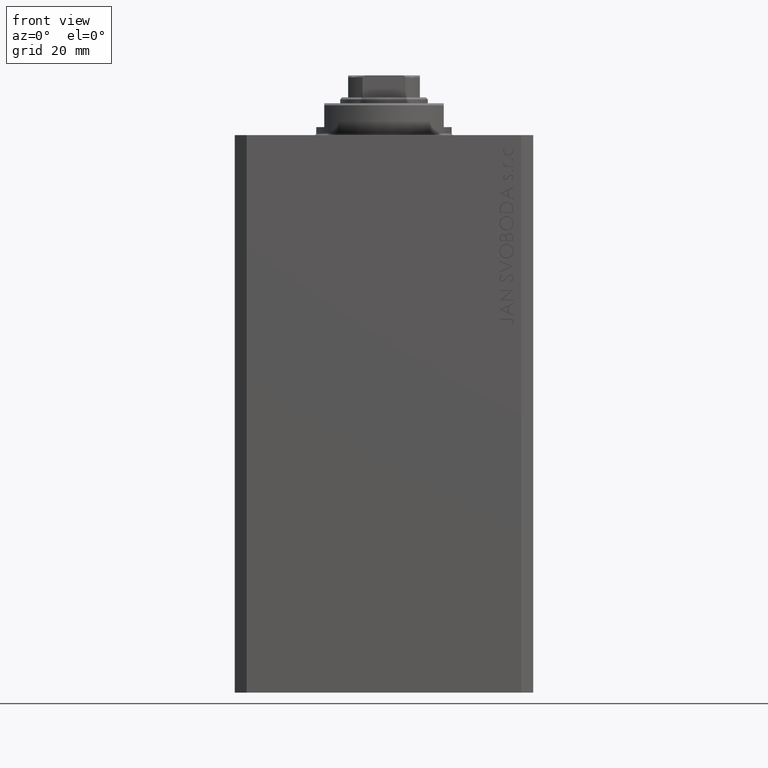
[diagram: clean part render]
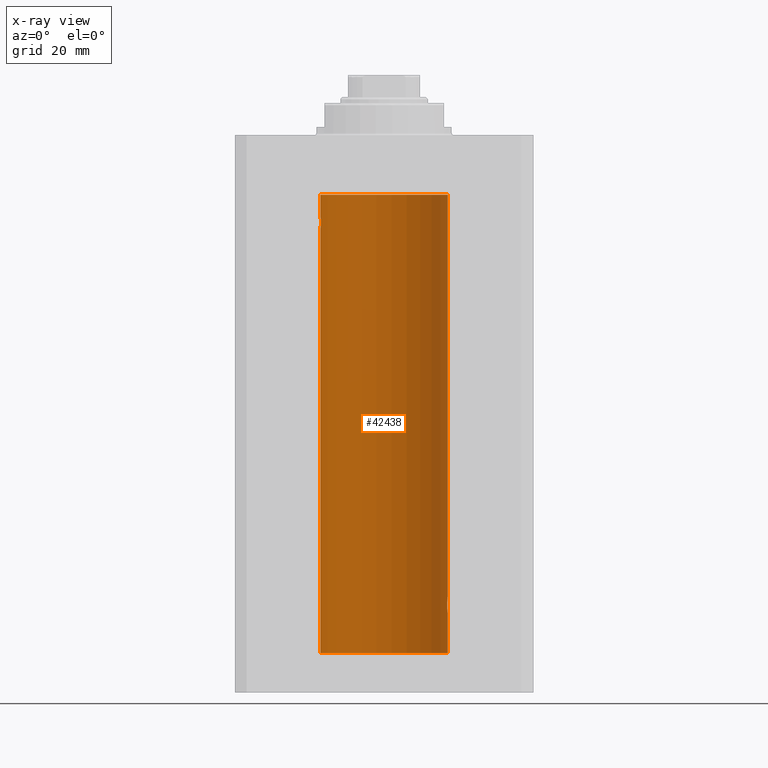
[diagram: x-ray — body ghosted, one internal face saturated and labeled with its STEP entity id]
A machine part, front view, then the same camera in x-ray: the body is ghosted and one INTERNAL B-rep face — a face not visible from any outside direction — is saturated and labeled: STEP entity #42438.
In plain terms, the highlighted cylindrical surface (partial cylindrical patch) has radius 16 mm, axis along (0, 0, 1).
Its self-contained STEP definition (entity closure, byte-faithful):
#136 = VERTEX_POINT ( 'NONE', #26934 ) ;
#188 = VERTEX_POINT ( 'NONE', #28999 ) ;
#243 = CARTESIAN_POINT ( 'NONE',  ( 15.87450786638750699, 2.000000000000297096, -118.0000000000000284 ) ) ;
#808 = ORIENTED_EDGE ( 'NONE', *, *, #11178, .F. ) ;
#952 = CARTESIAN_POINT ( 'NONE',  ( 15.87450786638751055, 2.000000000000297984, -117.8694386949729704 ) ) ;
#1245 = CARTESIAN_POINT ( 'NONE',  ( -16.00000000000000000, 8.139613661842072923E-16, -20.00000000000000000 ) ) ;
#1250 = VECTOR ( 'NONE', #12155, 1000.000000000000000 ) ;
#1386 = EDGE_CURVE ( 'NONE', #18527, #188, #23870, .T. ) ;
#1464 = CARTESIAN_POINT ( 'NONE',  ( -16.00000000000000000, 8.139613661842072923E-16, -20.00000000000000000 ) ) ;
#1516 = EDGE_CURVE ( 'NONE', #44726, #12711, #12444, .T. ) ;
#1716 = AXIS2_PLACEMENT_3D ( 'NONE', #39541, #35258, #17587 ) ;
#1756 = VECTOR ( 'NONE', #43763, 1000.000000000000000 ) ;
#2033 = CARTESIAN_POINT ( 'NONE',  ( 15.99211620657850474, 0.5182628822511399225, -119.9360834489417442 ) ) ;
#2422 = CARTESIAN_POINT ( 'NONE',  ( 16.00000000000000000, 0.000000000000000000, -130.0999999999999943 ) ) ;
#2984 = CARTESIAN_POINT ( 'NONE',  ( 15.92096875784782739, 1.599058044721133331, -119.2292259384397113 ) ) ;
#4017 = ORIENTED_EDGE ( 'NONE', *, *, #30730, .F. ) ;
#5742 = CARTESIAN_POINT ( 'NONE',  ( -15.90580292899658055, 1.735145127817749655, -23.00311247035039486 ) ) ;
#5874 = DIRECTION ( 'NONE',  ( 1.000000000000000000, 0.000000000000000000, 0.000000000000000000 ) ) ;
#6561 = CARTESIAN_POINT ( 'NONE',  ( 15.97582125337101999, 0.8876008124445644576, -119.7970409061775143 ) ) ;
#8129 = CARTESIAN_POINT ( 'NONE',  ( 16.00000000000000000, -2.738688404655786685E-23, -116.0000000000000142 ) ) ;
#8508 = B_SPLINE_CURVE_WITH_KNOTS ( 'NONE', 3,
 ( #13724, #39261, #20656, #2033, #20177, #6561, #9184, #28289, #16836, #2984, #28051, #24247, #39028, #10152 ),
 .UNSPECIFIED., .F., .F.,
 ( 4, 2, 2, 2, 2, 2, 4 ),
 ( 3.424160547694500162E-18, 0.0003912813346923356916, 0.0007825626693846680221, 0.001173844004077000082, 0.001565125338769331924, 0.002347688008154024883, 0.003130250677538718058 ),
 .UNSPECIFIED. ) ;
#8768 = VERTEX_POINT ( 'NONE', #21465 ) ;
#8783 = ORIENTED_EDGE ( 'NONE', *, *, #18787, .T. ) ;
#8852 = CARTESIAN_POINT ( 'NONE',  ( -15.89876304682112362, 1.797743958659264507, -22.88617757057269841 ) ) ;
#8974 = CARTESIAN_POINT ( 'NONE',  ( 0.000000000000000000, 0.000000000000000000, -130.0999999999999943 ) ) ;
#9083 = CARTESIAN_POINT ( 'NONE',  ( -15.99206840425678955, 0.5198215460038748681, -23.93569052926128649 ) ) ;
#9184 = CARTESIAN_POINT ( 'NONE',  ( 15.96893716441426214, 1.002454028984434808, -119.7355604244121707 ) ) ;
#9213 = VERTEX_POINT ( 'NONE', #41643 ) ;
#9328 = CARTESIAN_POINT ( 'NONE',  ( -15.88247600692092831, 1.935876924222084350, -22.51913097710111700 ) ) ;
#9565 = CARTESIAN_POINT ( 'NONE',  ( -15.99836091803360283, 0.2623312429553310565, -20.01299475991587329 ) ) ;
#9845 = ORIENTED_EDGE ( 'NONE', *, *, #1386, .T. ) ;
#10152 = CARTESIAN_POINT ( 'NONE',  ( 15.87450786638750699, 2.000000000000297096, -118.0000000000000284 ) ) ;
#10320 = ORIENTED_EDGE ( 'NONE', *, *, #26657, .T. ) ;
#11178 = EDGE_CURVE ( 'NONE', #18527, #9213, #36302, .T. ) ;
#11222 = CARTESIAN_POINT ( 'NONE',  ( 15.92095407913750726, 1.590131347295332009, -116.7799846904292167 ) ) ;
#11459 = CARTESIAN_POINT ( 'NONE',  ( 16.00000000000000000, 0.1305637488590863926, -116.0000000000000000 ) ) ;
#11478 = CARTESIAN_POINT ( 'NONE',  ( -16.00000000000000000, 1.959434878635765131E-15, -130.0999999999999943 ) ) ;
#11696 = CARTESIAN_POINT ( 'NONE',  ( 15.99834953062734222, 0.2631943783489354982, -116.0130845296388316 ) ) ;
#11922 = CARTESIAN_POINT ( 'NONE',  ( 15.95379436193629985, 1.219925354616377966, -116.4098000984431849 ) ) ;
#12155 = DIRECTION ( 'NONE',  ( -0.000000000000000000, -0.000000000000000000, 1.000000000000000000 ) ) ;
#12444 = B_SPLINE_CURVE_WITH_KNOTS ( 'NONE', 3,
 ( #243, #952, #22907, #44156, #30308, #15046, #14806, #11222, #32952, #44394, #11922, #33657, #15280, #15513, #26491, #11696, #11459, #18388 ),
 .UNSPECIFIED., .F., .F.,
 ( 4, 2, 2, 2, 2, 2, 2, 2, 4 ),
 ( 0.003130250677538718058, 0.003521348247420690372, 0.003912445817302662686, 0.004303543387184635000, 0.004694640957066607313, 0.005085738526948579627, 0.005476836096830552808, 0.005867933666712525122, 0.006259031236594497435 ),
 .UNSPECIFIED. ) ;
#12711 = VERTEX_POINT ( 'NONE', #8129 ) ;
#12848 = VERTEX_POINT ( 'NONE', #42696 ) ;
#12906 = CARTESIAN_POINT ( 'NONE',  ( -15.92908549642226745, 1.507649250492136606, -23.32075824828932653 ) ) ;
#13003 = VERTEX_POINT ( 'NONE', #39594 ) ;
#13383 = CARTESIAN_POINT ( 'NONE',  ( -15.94553003295877680, 1.322357532253827461, -20.49389287531754889 ) ) ;
#13724 = CARTESIAN_POINT ( 'NONE',  ( 16.00000000000000000, 3.524002214059393877E-15, -120.0000000000000284 ) ) ;
#14209 = DIRECTION ( 'NONE',  ( 1.000000000000000000, 0.000000000000000000, 0.000000000000000000 ) ) ;
#14806 = CARTESIAN_POINT ( 'NONE',  ( 15.90582997788426312, 1.734897462761020082, -116.9964633285505187 ) ) ;
#15046 = CARTESIAN_POINT ( 'NONE',  ( 15.89878974374255449, 1.797508500259969777, -117.1133488878856781 ) ) ;
#15280 = CARTESIAN_POINT ( 'NONE',  ( 15.97588373855009536, 0.8864683965309503311, -116.2024065562767561 ) ) ;
#15513 = CARTESIAN_POINT ( 'NONE',  ( 15.98747899434752817, 0.6443623600228916004, -116.1021155051082729 ) ) ;
#16024 = CARTESIAN_POINT ( 'NONE',  ( -15.92092783521423272, 1.590393755196006786, -23.21967657442277755 ) ) ;
#16498 = CARTESIAN_POINT ( 'NONE',  ( -15.88709929148890510, 1.898058445420892637, -22.64386968033013403 ) ) ;
#16747 = LINE ( 'NONE', #2422, #46205 ) ;
#16836 = CARTESIAN_POINT ( 'NONE',  ( 15.94550883254178331, 1.322613426523511881, -119.5058849502901666 ) ) ;
#17265 = AXIS2_PLACEMENT_3D ( 'NONE', #36165, #46912, #14209 ) ;
#17587 = DIRECTION ( 'NONE',  ( 1.000000000000000000, 0.000000000000000000, 0.000000000000000000 ) ) ;
#18388 = CARTESIAN_POINT ( 'NONE',  ( 16.00000000000000000, -2.738688404655786685E-23, -116.0000000000000142 ) ) ;
#18527 = VERTEX_POINT ( 'NONE', #1245 ) ;
#18693 = EDGE_CURVE ( 'NONE', #12711, #8768, #16747, .T. ) ;
#18787 = EDGE_CURVE ( 'NONE', #13003, #12848, #41279, .T. ) ;
#20072 = CARTESIAN_POINT ( 'NONE',  ( -15.87450182760079542, 2.000047931387149092, -22.12985308350499380 ) ) ;
#20177 = CARTESIAN_POINT ( 'NONE',  ( 15.98743782203464825, 0.6453927552190293904, -119.8975403585268396 ) ) ;
#20314 = CARTESIAN_POINT ( 'NONE',  ( -16.00000000000000000, 1.959434851239607631E-15, -23.99999999999999645 ) ) ;
#20656 = CARTESIAN_POINT ( 'NONE',  ( 15.99836014839681830, 0.2623923436743452187, -119.9869991933481828 ) ) ;
#20792 = CARTESIAN_POINT ( 'NONE',  ( -15.98744362947834929, 0.6452446332038160870, -20.10241129944407490 ) ) ;
#20808 = CIRCLE ( 'NONE', #1716, 16.00000000000000000 ) ;
#21465 = CARTESIAN_POINT ( 'NONE',  ( 16.00000000000000000, 0.000000000000000000, -15.00000000000000000 ) ) ;
#21725 = ORIENTED_EDGE ( 'NONE', *, *, #18693, .T. ) ;
#22907 = CARTESIAN_POINT ( 'NONE',  ( 15.87617168140110380, 1.986916736633999037, -117.7368093443493962 ) ) ;
#23147 = CARTESIAN_POINT ( 'NONE',  ( 16.00000000000000000, 0.000000000000000000, -130.0999999999999943 ) ) ;
#23658 = CARTESIAN_POINT ( 'NONE',  ( -15.99834873924246104, 0.2632563459770838055, -23.98690924832126115 ) ) ;
#23789 = DIRECTION ( 'NONE',  ( -0.000000000000000000, -0.000000000000000000, 1.000000000000000000 ) ) ;
#23870 = B_SPLINE_CURVE_WITH_KNOTS ( 'NONE', 3,
 ( #1464, #24141, #9565, #38692, #20792, #45376, #27004, #45850, #13383, #41554, #30592, #41787, #27711, #20072, #34636, #9328, #16498, #8852, #5742, #16024, #12906, #42499, #27469, #45143, #42264, #42027, #9083, #23658, #31062, #20314 ),
 .UNSPECIFIED., .F., .F.,
 ( 4, 2, 2, 2, 2, 2, 2, 2, 2, 2, 2, 2, 2, 2, 4 ),
 ( 7.909002969168862706E-19, 0.0003911894522871180884, 0.0007823789045742353095, 0.001173568356861352802, 0.001564757809148469968, 0.002347136713722698664, 0.003129515618296926493, 0.003520705070584046262, 0.003911894522871165597, 0.004303083975158284932, 0.004694273427445404268, 0.005085462879732523603, 0.005476652332019642938, 0.005867841784306762273, 0.006259031236593881609 ),
 .UNSPECIFIED. ) ;
#24141 = CARTESIAN_POINT ( 'NONE',  ( -15.99999999999999645, 0.1322838750249263340, -20.00000000000000000 ) ) ;
#24247 = CARTESIAN_POINT ( 'NONE',  ( 15.88135773388169092, 1.947448446433282854, -118.5247245543324794 ) ) ;
#26491 = CARTESIAN_POINT ( 'NONE',  ( 15.99207203775707065, 0.5197027266689088210, -116.0642796061806337 ) ) ;
#26657 = EDGE_CURVE ( 'NONE', #12848, #44726, #8508, .T. ) ;
#26896 = CARTESIAN_POINT ( 'NONE',  ( 15.87450786638750699, 2.000000000000297096, -118.0000000000000284 ) ) ;
#26934 = CARTESIAN_POINT ( 'NONE',  ( -16.00000000000000000, 1.959434878635765131E-15, -130.0999999999999943 ) ) ;
#27004 = CARTESIAN_POINT ( 'NONE',  ( -15.96895041604535770, 1.002241074716284874, -20.26431901501738153 ) ) ;
#27469 = CARTESIAN_POINT ( 'NONE',  ( -15.95377581882983442, 1.220169175415122931, -23.59001528100121803 ) ) ;
#27711 = CARTESIAN_POINT ( 'NONE',  ( -15.87451999516785506, 1.999903730784163169, -21.73808537237744432 ) ) ;
#28051 = CARTESIAN_POINT ( 'NONE',  ( 15.90454527605181667, 1.748004143318092174, -119.0061673938155309 ) ) ;
#28289 = CARTESIAN_POINT ( 'NONE',  ( 15.95380611548778660, 1.219810915946573759, -119.5903287070132706 ) ) ;
#28734 = CARTESIAN_POINT ( 'NONE',  ( -16.00000000000000000, 1.959434878635765131E-15, -130.0999999999999943 ) ) ;
#28999 = CARTESIAN_POINT ( 'NONE',  ( -16.00000000000000000, 1.959434851239607631E-15, -23.99999999999999645 ) ) ;
#30117 = ORIENTED_EDGE ( 'NONE', *, *, #1516, .T. ) ;
#30308 = CARTESIAN_POINT ( 'NONE',  ( 15.88712192135845491, 1.897869642555071179, -117.3555794672821264 ) ) ;
#30592 = CARTESIAN_POINT ( 'NONE',  ( -15.90457341008072412, 1.747750603376305278, -20.99340818440418488 ) ) ;
#30721 = CYLINDRICAL_SURFACE ( 'NONE', #36259, 16.00000000000000000 ) ;
#30730 = EDGE_CURVE ( 'NONE', #13003, #136, #20808, .T. ) ;
#31062 = CARTESIAN_POINT ( 'NONE',  ( -16.00000000000000000, 0.1305944228192325030, -23.99999999999999645 ) ) ;
#31725 = EDGE_LOOP ( 'NONE', ( #46416, #4017, #8783, #10320, #30117, #21725, #42451, #808, #9845 ) ) ;
#32006 = EDGE_CURVE ( 'NONE', #136, #188, #35898, .T. ) ;
#32834 = VECTOR ( 'NONE', #33202, 1000.000000000000000 ) ;
#32952 = CARTESIAN_POINT ( 'NONE',  ( 15.92911104305801828, 1.507378839264603476, -116.6789366429541701 ) ) ;
#33202 = DIRECTION ( 'NONE',  ( -0.000000000000000000, -0.000000000000000000, 1.000000000000000000 ) ) ;
#33657 = CARTESIAN_POINT ( 'NONE',  ( 15.96887171920781689, 1.003448269354837441, -116.2650518254207412 ) ) ;
#34291 = FACE_OUTER_BOUND ( 'NONE', #31725, .T. ) ;
#34415 = DIRECTION ( 'NONE',  ( -0.000000000000000000, -0.000000000000000000, 1.000000000000000000 ) ) ;
#34636 = CARTESIAN_POINT ( 'NONE',  ( -15.87616016863256618, 1.987008272775798723, -22.26251583007899626 ) ) ;
#35258 = DIRECTION ( 'NONE',  ( 0.000000000000000000, 0.000000000000000000, 1.000000000000000000 ) ) ;
#35898 = LINE ( 'NONE', #28734, #1756 ) ;
#36165 = CARTESIAN_POINT ( 'NONE',  ( 0.000000000000000000, 0.000000000000000000, -15.00000000000000000 ) ) ;
#36259 = AXIS2_PLACEMENT_3D ( 'NONE', #8974, #23789, #5874 ) ;
#36302 = LINE ( 'NONE', #11478, #32834 ) ;
#38692 = CARTESIAN_POINT ( 'NONE',  ( -15.99211983514074298, 0.5181437283162074747, -20.06388673317935911 ) ) ;
#39028 = CARTESIAN_POINT ( 'NONE',  ( 15.87450786638751410, 2.000000000000297096, -118.2612453035981872 ) ) ;
#39261 = CARTESIAN_POINT ( 'NONE',  ( 15.99999999999999645, 0.1323149458028788361, -120.0000000000000426 ) ) ;
#39541 = CARTESIAN_POINT ( 'NONE',  ( 0.000000000000000000, 0.000000000000000000, -130.0999999999999943 ) ) ;
#39594 = CARTESIAN_POINT ( 'NONE',  ( 16.00000000000000000, 0.000000000000000000, -130.0999999999999943 ) ) ;
#40351 = EDGE_CURVE ( 'NONE', #8768, #9213, #43177, .T. ) ;
#41279 = LINE ( 'NONE', #23147, #1250 ) ;
#41554 = CARTESIAN_POINT ( 'NONE',  ( -15.92099550861380131, 1.598790766515155282, -20.77043888260214644 ) ) ;
#41643 = CARTESIAN_POINT ( 'NONE',  ( -16.00000000000000000, 1.959434878635765131E-15, -15.00000000000000000 ) ) ;
#41787 = CARTESIAN_POINT ( 'NONE',  ( -15.88137861827787134, 1.947280337074169587, -21.47468243540596333 ) ) ;
#42027 = CARTESIAN_POINT ( 'NONE',  ( -15.98747331501412461, 0.6445079780200578812, -23.89783726498894723 ) ) ;
#42264 = CARTESIAN_POINT ( 'NONE',  ( -15.97587307151818159, 0.8866640484200133399, -23.79749928605040665 ) ) ;
#42438 = ADVANCED_FACE ( 'NONE', ( #34291 ), #30721, .F. ) ;
#42451 = ORIENTED_EDGE ( 'NONE', *, *, #40351, .T. ) ;
#42499 = CARTESIAN_POINT ( 'NONE',  ( -15.94564302722881877, 1.321075116345886924, -23.50737160312428742 ) ) ;
#42696 = CARTESIAN_POINT ( 'NONE',  ( 16.00000000000000000, 3.524002214059393877E-15, -120.0000000000000284 ) ) ;
#43177 = CIRCLE ( 'NONE', #17265, 16.00000000000000000 ) ;
#43763 = DIRECTION ( 'NONE',  ( -0.000000000000000000, -0.000000000000000000, 1.000000000000000000 ) ) ;
#44156 = CARTESIAN_POINT ( 'NONE',  ( 15.88249567060696243, 1.935716055827872539, -117.4802781602162156 ) ) ;
#44394 = CARTESIAN_POINT ( 'NONE',  ( 15.94566414814287469, 1.320819617421907788, -116.4924075827249226 ) ) ;
#44726 = VERTEX_POINT ( 'NONE', #26896 ) ;
#45143 = CARTESIAN_POINT ( 'NONE',  ( -15.96885838080210362, 1.003662148334370174, -23.73482670674955486 ) ) ;
#45376 = CARTESIAN_POINT ( 'NONE',  ( -15.97583181162461052, 0.8874076679346778462, -20.20286585251778888 ) ) ;
#45850 = CARTESIAN_POINT ( 'NONE',  ( -15.95382484008323409, 1.219564485341772198, -20.40948495147901554 ) ) ;
#46205 = VECTOR ( 'NONE', #34415, 1000.000000000000000 ) ;
#46416 = ORIENTED_EDGE ( 'NONE', *, *, #32006, .F. ) ;
#46912 = DIRECTION ( 'NONE',  ( 0.000000000000000000, 0.000000000000000000, 1.000000000000000000 ) ) ;